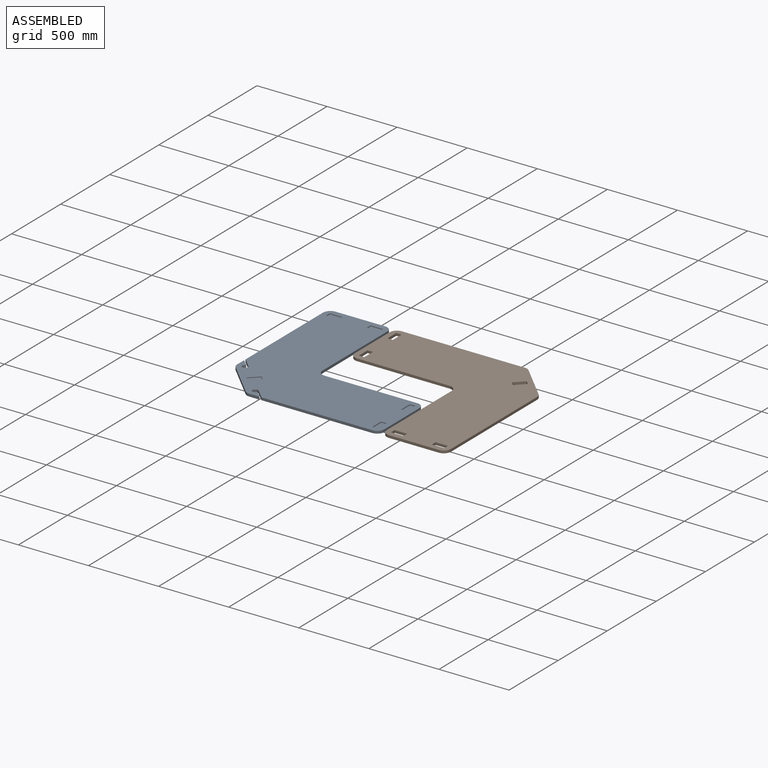
[diagram: assembled view]
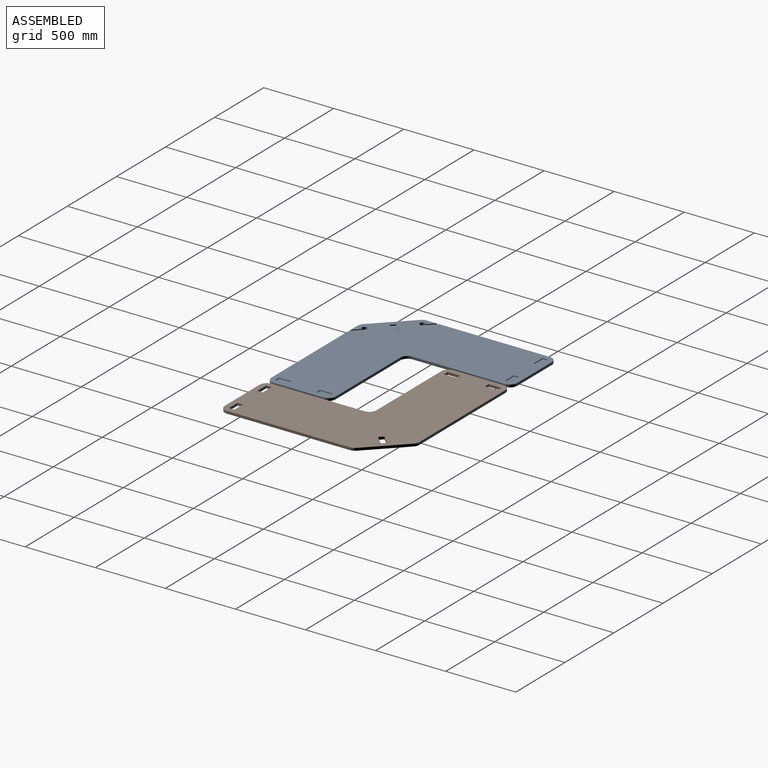
[diagram: assembled view, second angle]
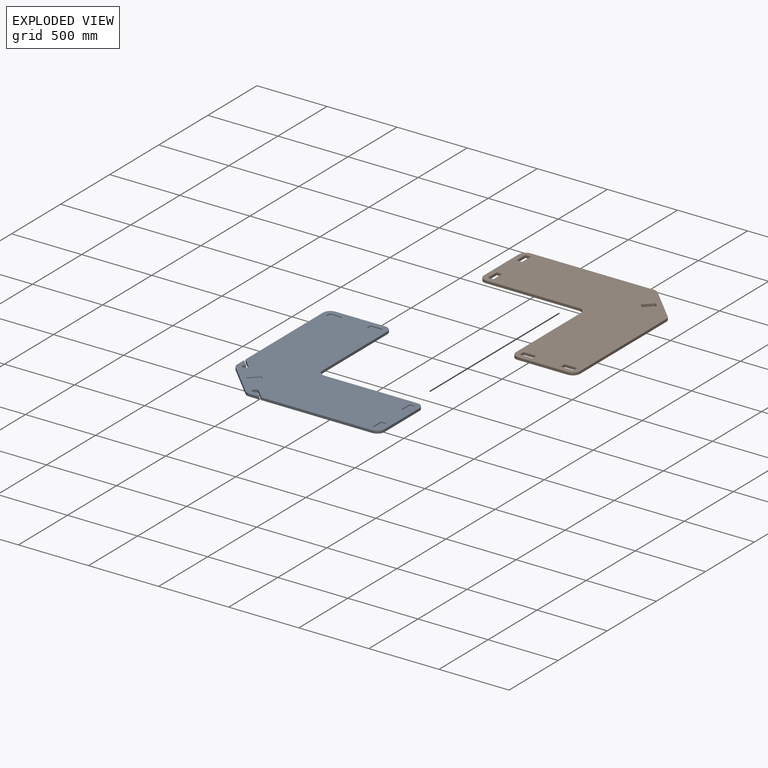
[diagram: exploded view]
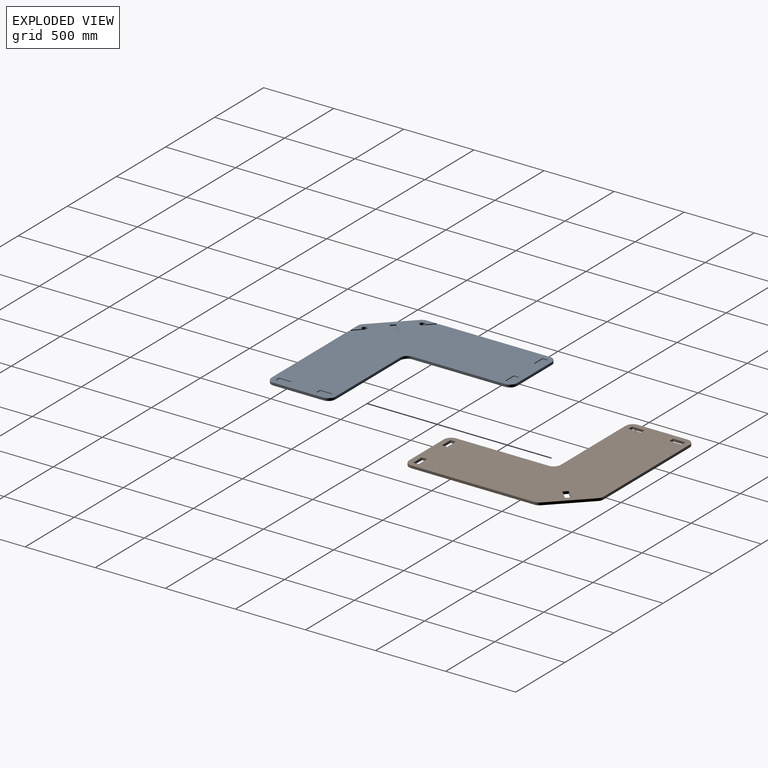
[diagram: exploded view, second angle]
ASSEMBLY  parts=2 mates=2
PART A: 54 faces, bbox 1219.2x1219.2x18.3 mm
  f0: plane 1219.2x1219.2mm, normal (0,0,-1), area 847026.7mm2, adj f1,f2,f3,f4,f5,f6,f7,f8
  f1: cylinder r=19.05mm len=38.1mm, axis (0,0,-1), area 1821mm2, adj f0,f2,f20,f21
  f2: plane 67.3x67.3mm, normal (-0.71,0.71,0), area 1737.6mm2, adj f0,f1,f3,f21
  f3: plane 791.23x18.26mm, normal (-1,0,0), area 14444.9mm2, adj f0,f2,f21,f47
  f4: plane 355.6x18.26mm, normal (0,-1,0), area 6491.9mm2, adj f0,f21,f47,f48
  f5: plane 660.4x18.26mm, normal (1,0,0), area 12056.4mm2, adj f0,f21,f48,f49
  f6: plane 660.4x18.26mm, normal (0,-1,0), area 12056.4mm2, adj f0,f21,f49,f50
  f7: plane 355.6x18.26mm, normal (1,0,0), area 6491.9mm2, adj f0,f21,f50,f51
  f8: plane 791.23x18.26mm, normal (0,1,0), area 14444.9mm2, adj f0,f9,f21,f51
  f9: plane 67.3x67.3mm, normal (-0.71,0.71,0), area 1737.6mm2, adj f0,f8,f10,f21
  f10: cylinder r=19.05mm len=38.1mm, axis (0,0,-1), area 1821mm2, adj f0,f9,f11,f21
  f11: plane 48.9x48.9mm, normal (0.71,-0.71,0), area 1262.6mm2, adj f0,f10,f12,f21
  f12: plane 73.25x18.26mm, normal (0,1,0), area 1337.3mm2, adj f0,f11,f21,f52
  f13: plane 239.65x239.65mm, normal (-0.71,0.71,0), area 6187.3mm2, adj f0,f21,f52,f53
  f14: plane 73.25x18.26mm, normal (-1,0,0), area 1337.3mm2, adj f0,f20,f21,f53
  f15: cylinder r=1.59mm len=11.91mm, axis (0,0,-1), area 118.8mm2, adj f21,f31
  f16: cylinder r=1.59mm len=11.91mm, axis (0,0,-1), area 118.8mm2, adj f21,f26
  f17: cylinder r=1.59mm len=11.91mm, axis (0,0,-1), area 118.8mm2, adj f21,f41
  f18: cylinder r=1.59mm len=11.91mm, axis (0,0,-1), area 118.8mm2, adj f21,f36
  f19: cylinder r=1.27mm len=11.91mm, axis (0,0,-1), area 95mm2, adj f21,f46
  f20: plane 48.9x48.9mm, normal (0.71,-0.71,0), area 1262.6mm2, adj f0,f1,f14,f21
  f21: plane 1219.2x1219.2mm, normal (0,0,1), area 863925.4mm2, adj f1,f2,f3,f4,f5,f6,f7,f8
  f22: plane 38.1x6.35mm, normal (-1,0,0), area 241.9mm2, adj f0,f23,f25,f26
  f23: plane 88.9x6.35mm, normal (0,-1,0), area 564.5mm2, adj f0,f22,f24,f26
  f24: plane 38.1x6.35mm, normal (1,0,0), area 241.9mm2, adj f0,f23,f25,f26
  f25: plane 88.9x6.35mm, normal (0,1,0), area 564.5mm2, adj f0,f22,f24,f26
  f26: plane 88.9x38.1mm, normal (0,0,-1), area 3379.2mm2, adj f16,f22,f23,f24,f25
  f27: plane 38.1x6.35mm, normal (-1,0,0), area 241.9mm2, adj f0,f28,f30,f31
  f28: plane 88.9x6.35mm, normal (0,-1,0), area 564.5mm2, adj f0,f27,f29,f31
  f29: plane 38.1x6.35mm, normal (1,0,0), area 241.9mm2, adj f0,f28,f30,f31
  f30: plane 88.9x6.35mm, normal (0,1,0), area 564.5mm2, adj f0,f27,f29,f31
  f31: plane 88.9x38.1mm, normal (0,0,-1), area 3379.2mm2, adj f15,f27,f28,f29,f30
  f32: plane 88.9x6.35mm, normal (-1,0,0), area 564.5mm2, adj f0,f33,f35,f36
  f33: plane 38.1x6.35mm, normal (0,-1,0), area 241.9mm2, adj f0,f32,f34,f36
  f34: plane 88.9x6.35mm, normal (1,0,0), area 564.5mm2, adj f0,f33,f35,f36
  f35: plane 38.1x6.35mm, normal (0,1,0), area 241.9mm2, adj f0,f32,f34,f36
  f36: plane 88.9x38.1mm, normal (0,0,-1), area 3379.2mm2, adj f18,f32,f33,f34,f35
  f37: plane 38.1x6.35mm, normal (0,1,0), area 241.9mm2, adj f0,f38,f40,f41
  f38: plane 88.9x6.35mm, normal (-1,0,0), area 564.5mm2, adj f0,f37,f39,f41
  f39: plane 38.1x6.35mm, normal (0,-1,0), area 241.9mm2, adj f0,f38,f40,f41
  f40: plane 88.9x6.35mm, normal (1,0,0), area 564.5mm2, adj f0,f37,f39,f41
  f41: plane 88.9x38.1mm, normal (0,0,-1), area 3379.2mm2, adj f17,f37,f38,f39,f40
  f42: plane 62.86x62.86mm, normal (-0.71,-0.71,0), area 564.5mm2, adj f0,f43,f45,f46
  f43: plane 26.94x26.94mm, normal (0.71,-0.71,0), area 241.9mm2, adj f0,f42,f44,f46
  f44: plane 62.86x62.86mm, normal (0.71,0.71,0), area 564.5mm2, adj f0,f43,f45,f46
  f45: plane 26.94x26.94mm, normal (-0.71,0.71,0), area 241.9mm2, adj f0,f42,f44,f46
  f46: plane 89.8x89.8mm, normal (0,0,-1), area 3382mm2, adj f19,f42,f43,f44,f45
  f47: cylinder r=50.8mm len=50.8mm, axis (0,0,-1), area 1456.8mm2, adj f0,f3,f4,f21
  f48: cylinder r=50.8mm len=50.8mm, axis (0,0,-1), area 1456.8mm2, adj f0,f4,f5,f21
  f49: cylinder r=50.8mm len=50.8mm, axis (0,0,1), area 1456.8mm2, adj f0,f5,f6,f21
  f50: cylinder r=50.8mm len=50.8mm, axis (0,0,-1), area 1456.8mm2, adj f0,f6,f7,f21
  f51: cylinder r=50.8mm len=50.8mm, axis (0,0,-1), area 1456.8mm2, adj f0,f7,f8,f21
  f52: cylinder r=50.8mm len=35.92mm, axis (0,0,-1), area 728.4mm2, adj f0,f12,f13,f21
  f53: cylinder r=50.8mm len=35.92mm, axis (0,0,-1), area 728.4mm2, adj f0,f13,f14,f21
PART B: 36 faces, bbox 1219.2x1219.2x18.3 mm
  f0: plane 38.1x18.26mm, normal (0,-1,0), area 695.6mm2, adj f1,f26,f27,f28
  f1: plane 88.9x18.26mm, normal (1,0,0), area 1623mm2, adj f0,f2,f27,f28
  f2: plane 38.1x18.26mm, normal (0,1,0), area 695.6mm2, adj f1,f26,f27,f28
  f3: plane 877.95x18.26mm, normal (0,1,0), area 16028.1mm2, adj f27,f28,f29,f35
  f4: plane 355.6x18.26mm, normal (1,0,0), area 6491.9mm2, adj f27,f28,f29,f30
  f5: plane 660.4x18.26mm, normal (0,-1,0), area 12056.4mm2, adj f27,f28,f30,f31
  f6: plane 660.4x18.26mm, normal (1,0,0), area 12056.4mm2, adj f27,f28,f31,f32
  f7: plane 355.6x18.26mm, normal (0,-1,0), area 6491.9mm2, adj f27,f28,f32,f33
  f8: plane 877.95x18.26mm, normal (-1,0,0), area 16028.1mm2, adj f27,f28,f33,f34
  f9: plane 26.94x26.94mm, normal (0.71,-0.71,0), area 695.6mm2, adj f10,f22,f27,f28
  f10: plane 62.86x62.86mm, normal (0.71,0.71,0), area 1623mm2, adj f9,f11,f27,f28
  f11: plane 26.94x26.94mm, normal (-0.71,0.71,0), area 695.6mm2, adj f10,f22,f27,f28
  f12: plane 88.9x18.26mm, normal (1,0,0), area 1623mm2, adj f13,f23,f27,f28
  f13: plane 38.1x18.26mm, normal (0,1,0), area 695.6mm2, adj f12,f14,f27,f28
  f14: plane 88.9x18.26mm, normal (-1,0,0), area 1623mm2, adj f13,f23,f27,f28
  f15: plane 38.1x18.26mm, normal (1,0,0), area 695.6mm2, adj f16,f24,f27,f28
  f16: plane 88.9x18.26mm, normal (0,1,0), area 1623mm2, adj f15,f17,f27,f28
  f17: plane 38.1x18.26mm, normal (-1,0,0), area 695.6mm2, adj f16,f24,f27,f28
  f18: plane 38.1x18.26mm, normal (1,0,0), area 695.6mm2, adj f19,f25,f27,f28
  f19: plane 88.9x18.26mm, normal (0,1,0), area 1623mm2, adj f18,f20,f27,f28
  f20: plane 38.1x18.26mm, normal (-1,0,0), area 695.6mm2, adj f19,f25,f27,f28
  f21: plane 239.65x239.65mm, normal (-0.71,0.71,0), area 6187.3mm2, adj f27,f28,f34,f35
  f22: plane 62.86x62.86mm, normal (-0.71,-0.71,0), area 1623mm2, adj f9,f11,f27,f28
  f23: plane 38.1x18.26mm, normal (0,-1,0), area 695.6mm2, adj f12,f14,f27,f28
  f24: plane 88.9x18.26mm, normal (0,-1,0), area 1623mm2, adj f15,f17,f27,f28
  f25: plane 88.9x18.26mm, normal (0,-1,0), area 1623mm2, adj f18,f20,f27,f28
  f26: plane 88.9x18.26mm, normal (-1,0,0), area 1623mm2, adj f0,f2,f27,f28
  f27: plane 1219.2x1219.2mm, normal (0,0,1), area 850806.5mm2, adj f0,f1,f2,f3,f4,f5,f6,f7
  f28: plane 1219.2x1219.2mm, normal (0,0,-1), area 850806.5mm2, adj f0,f1,f2,f3,f4,f5,f6,f7
  f29: cylinder r=50.8mm len=50.8mm, axis (0,0,-1), area 1456.8mm2, adj f3,f4,f27,f28
  f30: cylinder r=50.8mm len=50.8mm, axis (0,0,-1), area 1456.8mm2, adj f4,f5,f27,f28
  f31: cylinder r=50.8mm len=50.8mm, axis (0,0,1), area 1456.8mm2, adj f5,f6,f27,f28
  f32: cylinder r=50.8mm len=50.8mm, axis (0,0,-1), area 1456.8mm2, adj f6,f7,f27,f28
  f33: cylinder r=50.8mm len=50.8mm, axis (0,0,-1), area 1456.8mm2, adj f7,f8,f27,f28
  f34: cylinder r=50.8mm len=35.92mm, axis (0,0,-1), area 728.4mm2, adj f8,f21,f27,f28
  f35: cylinder r=50.8mm len=35.92mm, axis (0,0,-1), area 728.4mm2, adj f3,f21,f27,f28
PLACE A rot(axis=(1,0,0),180deg) t=(-822.86,617.04,449.64)mm
PLACE B rot(axis=(0,-1,0),180deg) t=(870.98,-602.16,24.99)mm
MATE planar A.f4 <-> B.f3  axis (0,1,0) through (-594.26,617.04,34.11)mm
MATE planar A.f21 <-> B.f27  axis (0,0,-1) through (-343.49,-122.79,24.99)mm
